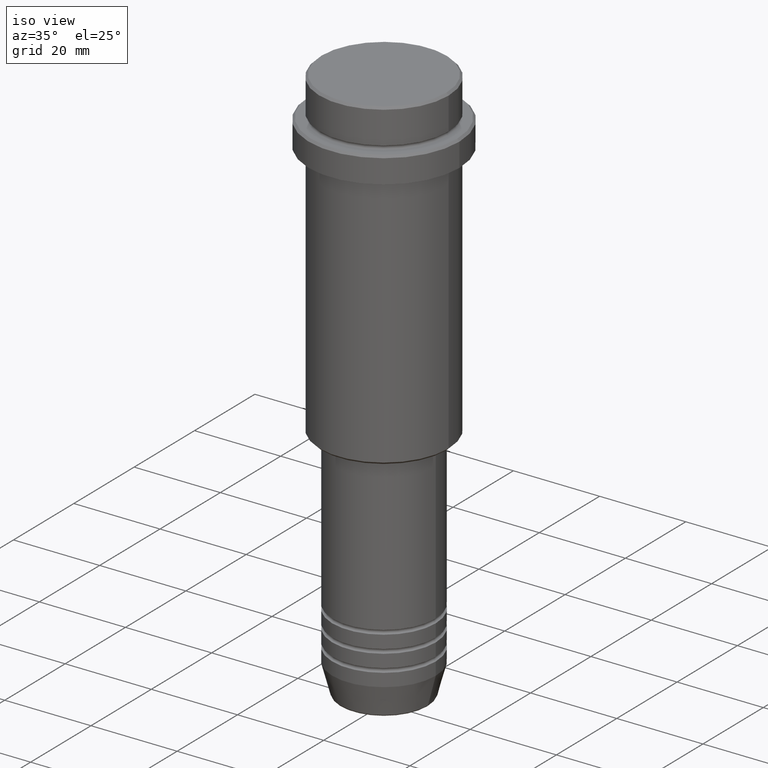
[diagram: clean part render]
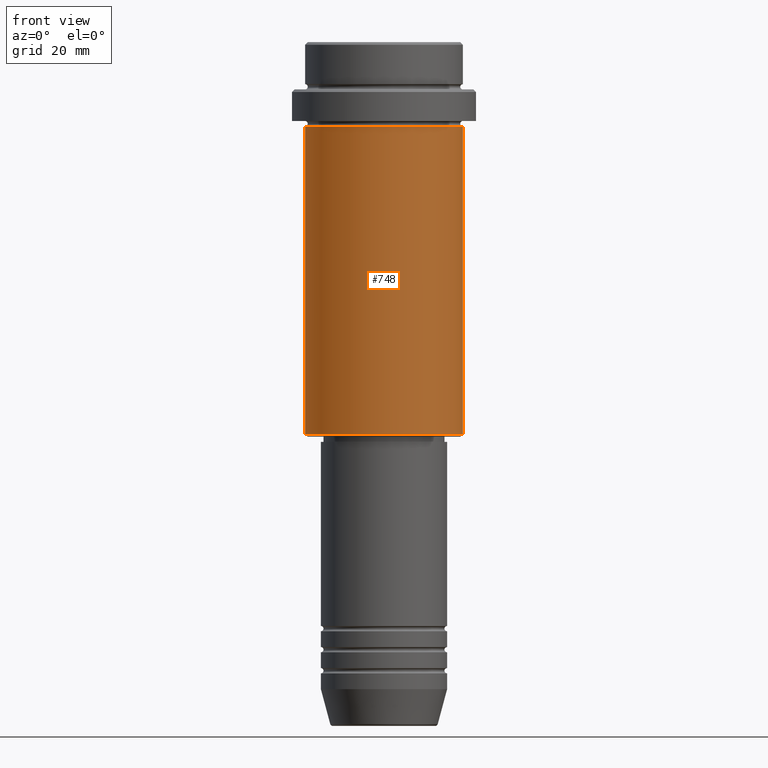
[diagram: tour spotlight — one face highlighted and labeled with its STEP entity id]
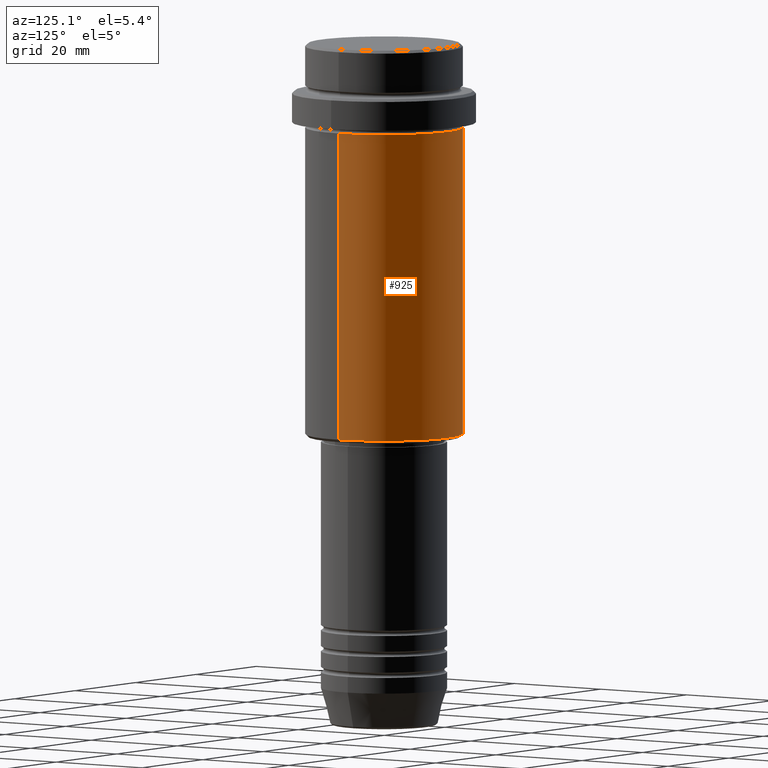
[diagram: tour spotlight — one face highlighted and labeled with its STEP entity id]
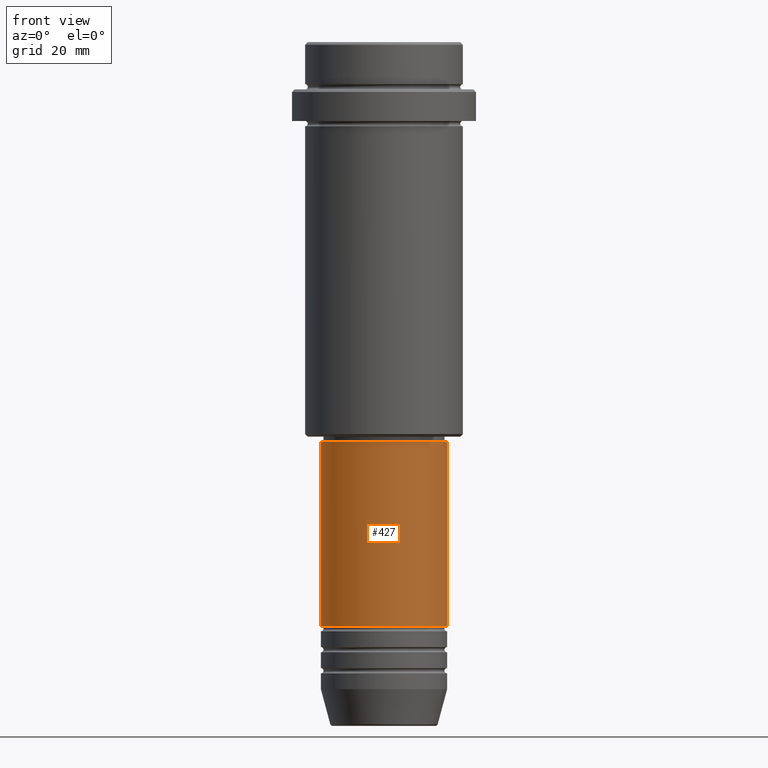
[diagram: tour spotlight — one face highlighted and labeled with its STEP entity id]
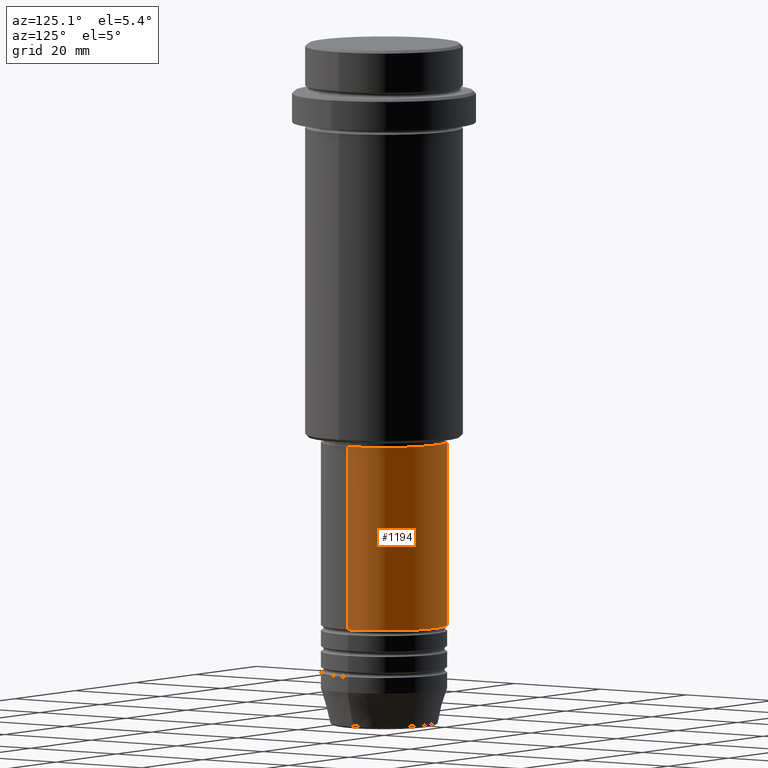
[diagram: tour spotlight — one face highlighted and labeled with its STEP entity id]
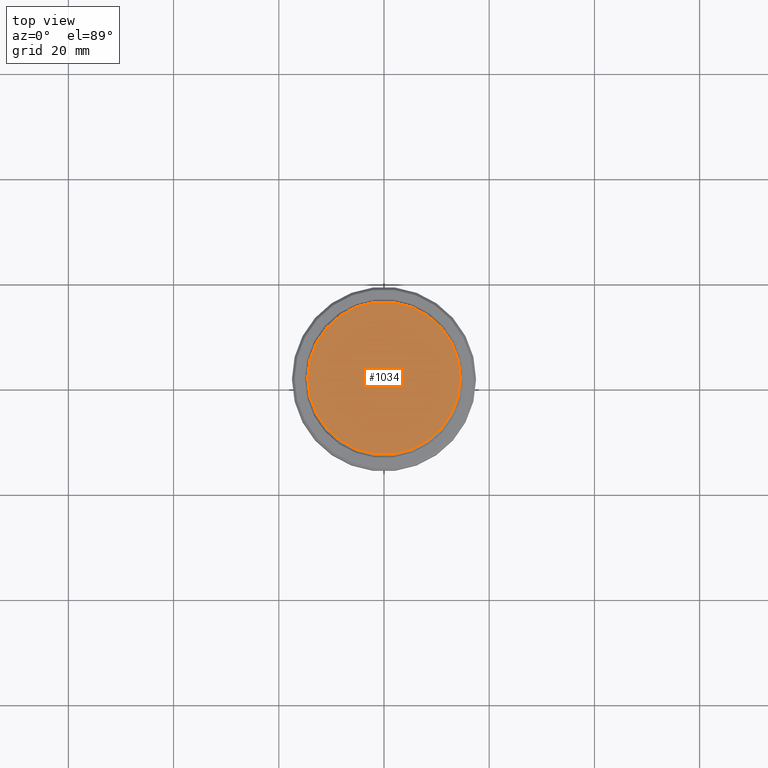
[diagram: tour spotlight — one face highlighted and labeled with its STEP entity id]
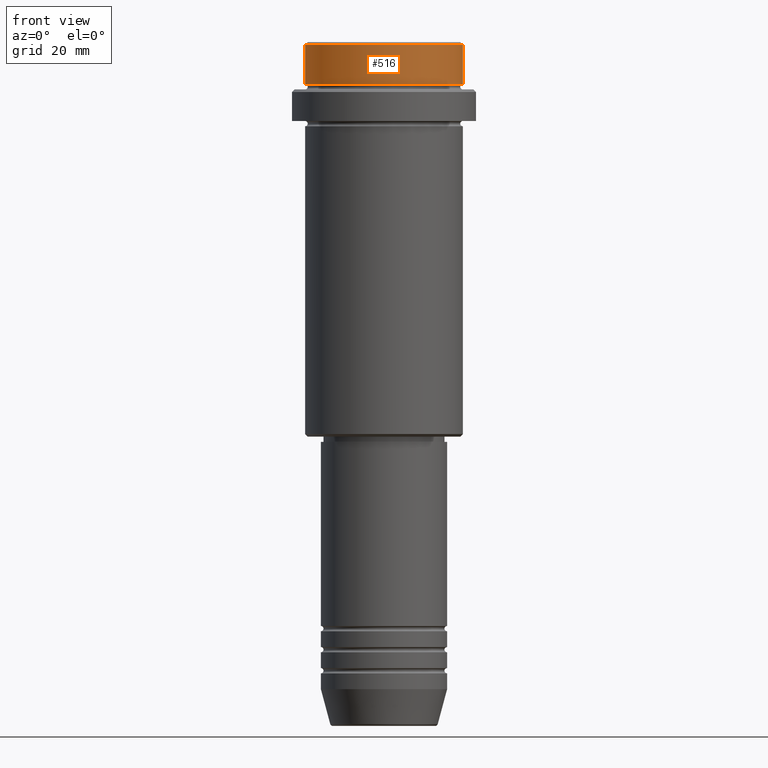
[diagram: tour spotlight — one face highlighted and labeled with its STEP entity id]
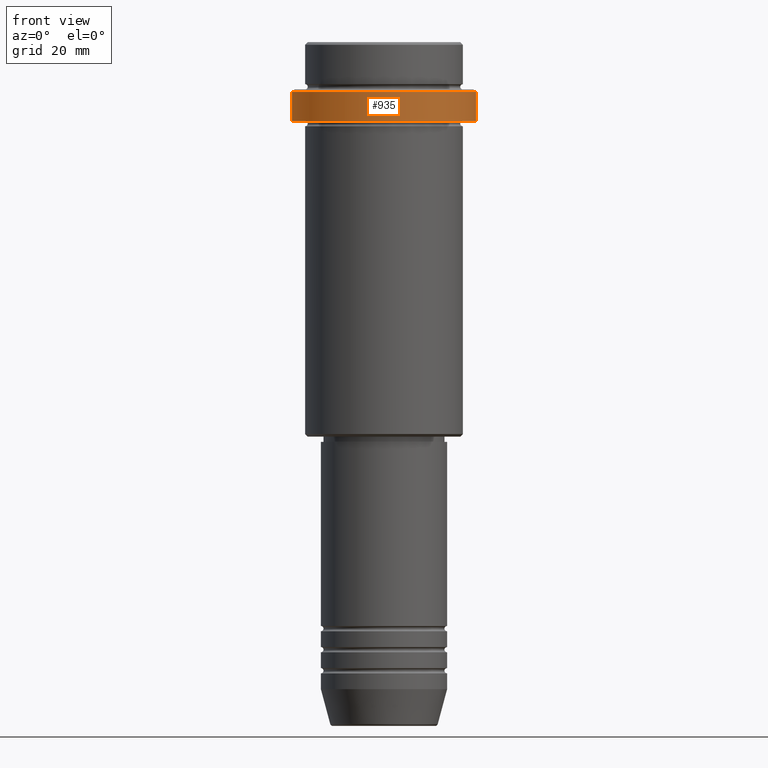
[diagram: tour spotlight — one face highlighted and labeled with its STEP entity id]
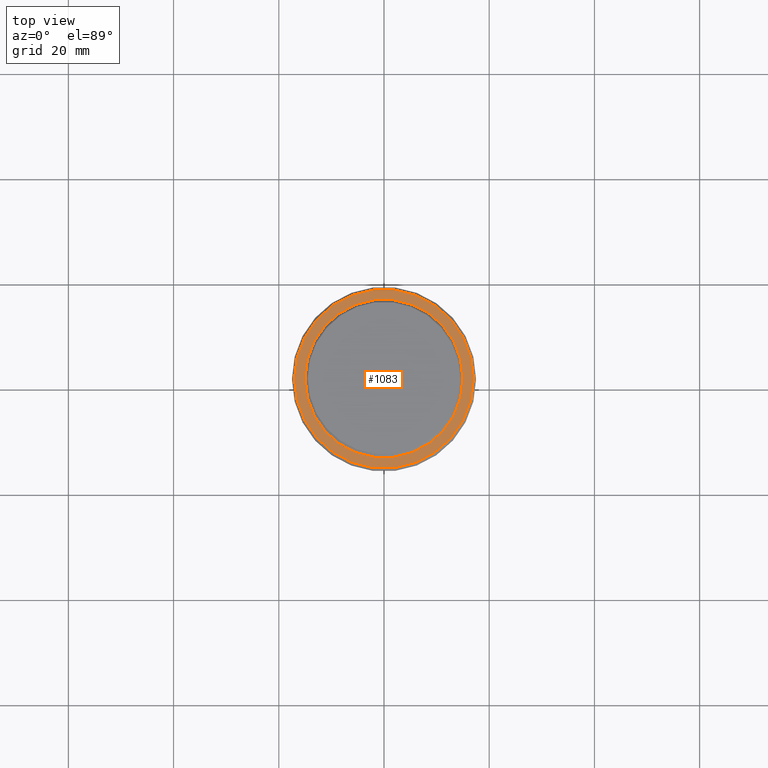
[diagram: tour spotlight — one face highlighted and labeled with its STEP entity id]
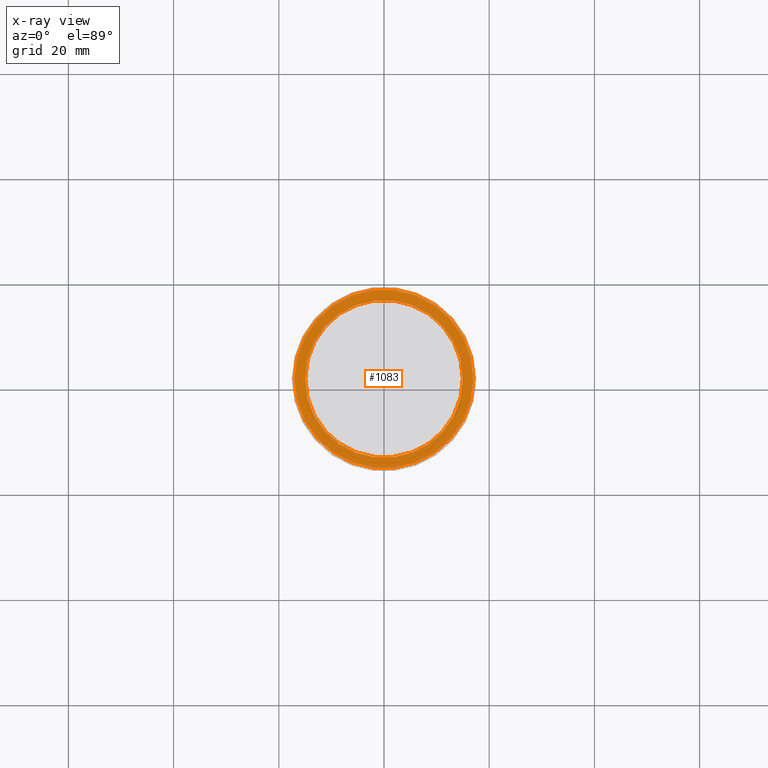
[diagram: x-ray of the same camera — body ghosted, this tour face saturated]
A machine part: a face-by-face anatomy tour. The part has 52 B-rep faces; the first image is the clean iso view, then the 8 largest visible faces are spotlighted one at a time (largest first), each with its STEP entity span.

Face 1 — front view, entity #748. In plain terms, the highlighted cylindrical surface (partial cylindrical patch) has radius 15 mm, axis along (-0, -0, 1).
Definition (entity closure, byte-faithful):
#11 = ORIENTED_EDGE ( 'NONE', *, *, #853, .T. ) ;
#24 = CARTESIAN_POINT ( 'NONE',  ( 0.000000000000000000, 0.000000000000000000, 0.000000000000000000 ) ) ;
#56 = DIRECTION ( 'NONE',  ( -0.000000000000000000, -0.000000000000000000, 1.000000000000000000 ) ) ;
#148 = DIRECTION ( 'NONE',  ( 1.000000000000000000, 0.000000000000000000, 0.000000000000000000 ) ) ;
#202 = DIRECTION ( 'NONE',  ( -0.000000000000000000, -0.000000000000000000, 1.000000000000000000 ) ) ;
#221 = ORIENTED_EDGE ( 'NONE', *, *, #1114, .T. ) ;
#302 = AXIS2_PLACEMENT_3D ( 'NONE', #1076, #202, #976 ) ;
#373 = CARTESIAN_POINT ( 'NONE',  ( 15.00000000000000000, 0.000000000000000000, 0.000000000000000000 ) ) ;
#388 = DIRECTION ( 'NONE',  ( -1.000000000000000000, 0.000000000000000000, 0.000000000000000000 ) ) ;
#445 = VERTEX_POINT ( 'NONE', #1330 ) ;
#513 = CARTESIAN_POINT ( 'NONE',  ( 0.000000000000000000, 0.000000000000000000, -74.50000000000004263 ) ) ;
#602 = CARTESIAN_POINT ( 'NONE',  ( -15.00000000000000000, 1.836970198721029589E-15, -74.50000000000004263 ) ) ;
#617 = CIRCLE ( 'NONE', #302, 15.00000000000000178 ) ;
#636 = CARTESIAN_POINT ( 'NONE',  ( -15.00000000000000000, 1.836970198721029589E-15, 0.000000000000000000 ) ) ;
#697 = LINE ( 'NONE', #373, #1101 ) ;
#698 = CYLINDRICAL_SURFACE ( 'NONE', #846, 15.00000000000000000 ) ;
#701 = EDGE_CURVE ( 'NONE', #445, #884, #617, .T. ) ;
#739 = EDGE_CURVE ( 'NONE', #761, #445, #1176, .T. ) ;
#748 = ADVANCED_FACE ( 'NONE', ( #999 ), #698, .T. ) ;
#761 = VERTEX_POINT ( 'NONE', #602 ) ;
#802 = AXIS2_PLACEMENT_3D ( 'NONE', #513, #56, #388 ) ;
#818 = DIRECTION ( 'NONE',  ( -0.000000000000000000, -0.000000000000000000, 1.000000000000000000 ) ) ;
#846 = AXIS2_PLACEMENT_3D ( 'NONE', #24, #1219, #148 ) ;
#853 = EDGE_CURVE ( 'NONE', #761, #1108, #889, .T. ) ;
#871 = VECTOR ( 'NONE', #1185, 1000.000000000000000 ) ;
#884 = VERTEX_POINT ( 'NONE', #1290 ) ;
#889 = CIRCLE ( 'NONE', #802, 15.00000000000000000 ) ;
#951 = EDGE_LOOP ( 'NONE', ( #1354, #11, #221, #1407 ) ) ;
#976 = DIRECTION ( 'NONE',  ( 1.000000000000000000, 0.000000000000000000, 0.000000000000000000 ) ) ;
#999 = FACE_OUTER_BOUND ( 'NONE', #951, .T. ) ;
#1015 = CARTESIAN_POINT ( 'NONE',  ( 15.00000000000000000, 0.000000000000000000, -74.50000000000004263 ) ) ;
#1076 = CARTESIAN_POINT ( 'NONE',  ( 0.000000000000000000, 0.000000000000000000, -16.00000000000000000 ) ) ;
#1101 = VECTOR ( 'NONE', #818, 1000.000000000000000 ) ;
#1108 = VERTEX_POINT ( 'NONE', #1015 ) ;
#1114 = EDGE_CURVE ( 'NONE', #1108, #884, #697, .T. ) ;
#1176 = LINE ( 'NONE', #636, #871 ) ;
#1185 = DIRECTION ( 'NONE',  ( -0.000000000000000000, -0.000000000000000000, 1.000000000000000000 ) ) ;
#1219 = DIRECTION ( 'NONE',  ( -0.000000000000000000, -0.000000000000000000, 1.000000000000000000 ) ) ;
#1290 = CARTESIAN_POINT ( 'NONE',  ( 15.00000000000000178, 0.000000000000000000, -16.00000000000000000 ) ) ;
#1330 = CARTESIAN_POINT ( 'NONE',  ( -15.00000000000000355, 1.836970198721029983E-15, -16.00000000000000000 ) ) ;
#1354 = ORIENTED_EDGE ( 'NONE', *, *, #739, .F. ) ;
#1407 = ORIENTED_EDGE ( 'NONE', *, *, #701, .F. ) ;

Face 2 — auxiliary view, entity #925. In plain terms, the highlighted cylindrical surface (partial cylindrical patch) has radius 15 mm, axis along (-0, -0, 1).
Definition (entity closure, byte-faithful):
#10 = CYLINDRICAL_SURFACE ( 'NONE', #571, 15.00000000000000000 ) ;
#14 = CARTESIAN_POINT ( 'NONE',  ( 0.000000000000000000, 0.000000000000000000, -74.50000000000004263 ) ) ;
#111 = CIRCLE ( 'NONE', #688, 15.00000000000000000 ) ;
#184 = DIRECTION ( 'NONE',  ( -0.000000000000000000, -0.000000000000000000, 1.000000000000000000 ) ) ;
#199 = DIRECTION ( 'NONE',  ( 1.000000000000000000, 0.000000000000000000, 0.000000000000000000 ) ) ;
#373 = CARTESIAN_POINT ( 'NONE',  ( 15.00000000000000000, 0.000000000000000000, 0.000000000000000000 ) ) ;
#445 = VERTEX_POINT ( 'NONE', #1330 ) ;
#447 = ORIENTED_EDGE ( 'NONE', *, *, #1114, .F. ) ;
#488 = ORIENTED_EDGE ( 'NONE', *, *, #507, .F. ) ;
#507 = EDGE_CURVE ( 'NONE', #884, #445, #981, .T. ) ;
#564 = DIRECTION ( 'NONE',  ( -0.000000000000000000, -0.000000000000000000, 1.000000000000000000 ) ) ;
#571 = AXIS2_PLACEMENT_3D ( 'NONE', #1211, #564, #1350 ) ;
#602 = CARTESIAN_POINT ( 'NONE',  ( -15.00000000000000000, 1.836970198721029589E-15, -74.50000000000004263 ) ) ;
#636 = CARTESIAN_POINT ( 'NONE',  ( -15.00000000000000000, 1.836970198721029589E-15, 0.000000000000000000 ) ) ;
#677 = EDGE_CURVE ( 'NONE', #1108, #761, #111, .T. ) ;
#688 = AXIS2_PLACEMENT_3D ( 'NONE', #14, #782, #1216 ) ;
#697 = LINE ( 'NONE', #373, #1101 ) ;
#739 = EDGE_CURVE ( 'NONE', #761, #445, #1176, .T. ) ;
#761 = VERTEX_POINT ( 'NONE', #602 ) ;
#782 = DIRECTION ( 'NONE',  ( -0.000000000000000000, -0.000000000000000000, 1.000000000000000000 ) ) ;
#818 = DIRECTION ( 'NONE',  ( -0.000000000000000000, -0.000000000000000000, 1.000000000000000000 ) ) ;
#871 = VECTOR ( 'NONE', #1185, 1000.000000000000000 ) ;
#884 = VERTEX_POINT ( 'NONE', #1290 ) ;
#925 = ADVANCED_FACE ( 'NONE', ( #1309 ), #10, .T. ) ;
#981 = CIRCLE ( 'NONE', #1158, 15.00000000000000178 ) ;
#1000 = ORIENTED_EDGE ( 'NONE', *, *, #677, .T. ) ;
#1007 = ORIENTED_EDGE ( 'NONE', *, *, #739, .T. ) ;
#1015 = CARTESIAN_POINT ( 'NONE',  ( 15.00000000000000000, 0.000000000000000000, -74.50000000000004263 ) ) ;
#1067 = CARTESIAN_POINT ( 'NONE',  ( 0.000000000000000000, 0.000000000000000000, -16.00000000000000000 ) ) ;
#1101 = VECTOR ( 'NONE', #818, 1000.000000000000000 ) ;
#1108 = VERTEX_POINT ( 'NONE', #1015 ) ;
#1114 = EDGE_CURVE ( 'NONE', #1108, #884, #697, .T. ) ;
#1158 = AXIS2_PLACEMENT_3D ( 'NONE', #1067, #184, #199 ) ;
#1176 = LINE ( 'NONE', #636, #871 ) ;
#1185 = DIRECTION ( 'NONE',  ( -0.000000000000000000, -0.000000000000000000, 1.000000000000000000 ) ) ;
#1211 = CARTESIAN_POINT ( 'NONE',  ( 0.000000000000000000, 0.000000000000000000, 0.000000000000000000 ) ) ;
#1216 = DIRECTION ( 'NONE',  ( -1.000000000000000000, 0.000000000000000000, 0.000000000000000000 ) ) ;
#1290 = CARTESIAN_POINT ( 'NONE',  ( 15.00000000000000178, 0.000000000000000000, -16.00000000000000000 ) ) ;
#1309 = FACE_OUTER_BOUND ( 'NONE', #1357, .T. ) ;
#1330 = CARTESIAN_POINT ( 'NONE',  ( -15.00000000000000355, 1.836970198721029983E-15, -16.00000000000000000 ) ) ;
#1350 = DIRECTION ( 'NONE',  ( 1.000000000000000000, 0.000000000000000000, 0.000000000000000000 ) ) ;
#1357 = EDGE_LOOP ( 'NONE', ( #1000, #1007, #488, #447 ) ) ;

Face 3 — front view, entity #427. In plain terms, the highlighted cylindrical surface (partial cylindrical patch) has radius 12 mm, axis along (-0, -0, 1).
Definition (entity closure, byte-faithful):
#2 = ORIENTED_EDGE ( 'NONE', *, *, #1087, .F. ) ;
#13 = DIRECTION ( 'NONE',  ( -0.000000000000000000, -0.000000000000000000, 1.000000000000000000 ) ) ;
#25 = ORIENTED_EDGE ( 'NONE', *, *, #1097, .T. ) ;
#34 = AXIS2_PLACEMENT_3D ( 'NONE', #1311, #773, #788 ) ;
#43 = DIRECTION ( 'NONE',  ( 1.000000000000000000, 0.000000000000000000, 0.000000000000000000 ) ) ;
#59 = DIRECTION ( 'NONE',  ( 1.000000000000000000, 0.000000000000000000, 0.000000000000000000 ) ) ;
#136 = ORIENTED_EDGE ( 'NONE', *, *, #1301, .F. ) ;
#139 = FACE_OUTER_BOUND ( 'NONE', #881, .T. ) ;
#170 = AXIS2_PLACEMENT_3D ( 'NONE', #746, #1168, #59 ) ;
#190 = CIRCLE ( 'NONE', #34, 11.99999999999999822 ) ;
#380 = VERTEX_POINT ( 'NONE', #1383 ) ;
#427 = ADVANCED_FACE ( 'NONE', ( #139 ), #665, .T. ) ;
#460 = ORIENTED_EDGE ( 'NONE', *, *, #1149, .T. ) ;
#548 = CARTESIAN_POINT ( 'NONE',  ( 12.00000000000000000, 0.000000000000000000, -110.9999999999998863 ) ) ;
#640 = LINE ( 'NONE', #866, #1081 ) ;
#665 = CYLINDRICAL_SURFACE ( 'NONE', #1365, 12.00000000000000000 ) ;
#667 = CARTESIAN_POINT ( 'NONE',  ( -12.00000000000000000, 1.469576158976823947E-15, 0.000000000000000000 ) ) ;
#716 = CARTESIAN_POINT ( 'NONE',  ( -11.99999999999999822, 1.469576158976823750E-15, -76.00000000000001421 ) ) ;
#746 = CARTESIAN_POINT ( 'NONE',  ( 0.000000000000000000, 0.000000000000000000, -110.9999999999998863 ) ) ;
#764 = CIRCLE ( 'NONE', #170, 12.00000000000000000 ) ;
#773 = DIRECTION ( 'NONE',  ( -0.000000000000000000, -0.000000000000000000, 1.000000000000000000 ) ) ;
#788 = DIRECTION ( 'NONE',  ( 1.000000000000000000, 0.000000000000000000, 0.000000000000000000 ) ) ;
#866 = CARTESIAN_POINT ( 'NONE',  ( 12.00000000000000000, 0.000000000000000000, 0.000000000000000000 ) ) ;
#876 = VECTOR ( 'NONE', #1104, 1000.000000000000000 ) ;
#881 = EDGE_LOOP ( 'NONE', ( #2, #460, #25, #136 ) ) ;
#908 = VERTEX_POINT ( 'NONE', #548 ) ;
#1045 = VERTEX_POINT ( 'NONE', #1273 ) ;
#1081 = VECTOR ( 'NONE', #1300, 1000.000000000000000 ) ;
#1087 = EDGE_CURVE ( 'NONE', #1045, #1349, #1128, .T. ) ;
#1097 = EDGE_CURVE ( 'NONE', #908, #380, #640, .T. ) ;
#1104 = DIRECTION ( 'NONE',  ( -0.000000000000000000, -0.000000000000000000, 1.000000000000000000 ) ) ;
#1128 = LINE ( 'NONE', #667, #876 ) ;
#1149 = EDGE_CURVE ( 'NONE', #1045, #908, #764, .T. ) ;
#1168 = DIRECTION ( 'NONE',  ( -0.000000000000000000, -0.000000000000000000, 1.000000000000000000 ) ) ;
#1240 = CARTESIAN_POINT ( 'NONE',  ( 0.000000000000000000, 0.000000000000000000, 0.000000000000000000 ) ) ;
#1273 = CARTESIAN_POINT ( 'NONE',  ( -12.00000000000000000, 1.469576158976823947E-15, -110.9999999999998863 ) ) ;
#1300 = DIRECTION ( 'NONE',  ( -0.000000000000000000, -0.000000000000000000, 1.000000000000000000 ) ) ;
#1301 = EDGE_CURVE ( 'NONE', #1349, #380, #190, .T. ) ;
#1311 = CARTESIAN_POINT ( 'NONE',  ( 0.000000000000000000, 0.000000000000000000, -76.00000000000001421 ) ) ;
#1349 = VERTEX_POINT ( 'NONE', #716 ) ;
#1365 = AXIS2_PLACEMENT_3D ( 'NONE', #1240, #13, #43 ) ;
#1383 = CARTESIAN_POINT ( 'NONE',  ( 11.99999999999999822, 0.000000000000000000, -76.00000000000001421 ) ) ;

Face 4 — auxiliary view, entity #1194. In plain terms, the highlighted cylindrical surface (partial cylindrical patch) has radius 12 mm, axis along (-0, -0, 1).
Definition (entity closure, byte-faithful):
#23 = EDGE_CURVE ( 'NONE', #908, #1045, #567, .T. ) ;
#245 = DIRECTION ( 'NONE',  ( -0.000000000000000000, -0.000000000000000000, 1.000000000000000000 ) ) ;
#290 = CIRCLE ( 'NONE', #719, 11.99999999999999822 ) ;
#380 = VERTEX_POINT ( 'NONE', #1383 ) ;
#423 = AXIS2_PLACEMENT_3D ( 'NONE', #990, #245, #1009 ) ;
#472 = DIRECTION ( 'NONE',  ( -0.000000000000000000, -0.000000000000000000, 1.000000000000000000 ) ) ;
#548 = CARTESIAN_POINT ( 'NONE',  ( 12.00000000000000000, 0.000000000000000000, -110.9999999999998863 ) ) ;
#549 = ORIENTED_EDGE ( 'NONE', *, *, #1087, .T. ) ;
#567 = CIRCLE ( 'NONE', #1341, 12.00000000000000000 ) ;
#640 = LINE ( 'NONE', #866, #1081 ) ;
#667 = CARTESIAN_POINT ( 'NONE',  ( -12.00000000000000000, 1.469576158976823947E-15, 0.000000000000000000 ) ) ;
#707 = EDGE_LOOP ( 'NONE', ( #747, #549, #1372, #989 ) ) ;
#716 = CARTESIAN_POINT ( 'NONE',  ( -11.99999999999999822, 1.469576158976823750E-15, -76.00000000000001421 ) ) ;
#719 = AXIS2_PLACEMENT_3D ( 'NONE', #980, #472, #1254 ) ;
#747 = ORIENTED_EDGE ( 'NONE', *, *, #23, .T. ) ;
#766 = CYLINDRICAL_SURFACE ( 'NONE', #423, 12.00000000000000000 ) ;
#770 = CARTESIAN_POINT ( 'NONE',  ( 0.000000000000000000, 0.000000000000000000, -110.9999999999998863 ) ) ;
#866 = CARTESIAN_POINT ( 'NONE',  ( 12.00000000000000000, 0.000000000000000000, 0.000000000000000000 ) ) ;
#876 = VECTOR ( 'NONE', #1104, 1000.000000000000000 ) ;
#908 = VERTEX_POINT ( 'NONE', #548 ) ;
#980 = CARTESIAN_POINT ( 'NONE',  ( 0.000000000000000000, 0.000000000000000000, -76.00000000000001421 ) ) ;
#989 = ORIENTED_EDGE ( 'NONE', *, *, #1097, .F. ) ;
#990 = CARTESIAN_POINT ( 'NONE',  ( 0.000000000000000000, 0.000000000000000000, 0.000000000000000000 ) ) ;
#1009 = DIRECTION ( 'NONE',  ( 1.000000000000000000, 0.000000000000000000, 0.000000000000000000 ) ) ;
#1045 = VERTEX_POINT ( 'NONE', #1273 ) ;
#1081 = VECTOR ( 'NONE', #1300, 1000.000000000000000 ) ;
#1087 = EDGE_CURVE ( 'NONE', #1045, #1349, #1128, .T. ) ;
#1097 = EDGE_CURVE ( 'NONE', #908, #380, #640, .T. ) ;
#1104 = DIRECTION ( 'NONE',  ( -0.000000000000000000, -0.000000000000000000, 1.000000000000000000 ) ) ;
#1123 = DIRECTION ( 'NONE',  ( 1.000000000000000000, 0.000000000000000000, 0.000000000000000000 ) ) ;
#1128 = LINE ( 'NONE', #667, #876 ) ;
#1173 = EDGE_CURVE ( 'NONE', #380, #1349, #290, .T. ) ;
#1194 = ADVANCED_FACE ( 'NONE', ( #1328 ), #766, .T. ) ;
#1202 = DIRECTION ( 'NONE',  ( -0.000000000000000000, -0.000000000000000000, 1.000000000000000000 ) ) ;
#1254 = DIRECTION ( 'NONE',  ( 1.000000000000000000, 0.000000000000000000, 0.000000000000000000 ) ) ;
#1273 = CARTESIAN_POINT ( 'NONE',  ( -12.00000000000000000, 1.469576158976823947E-15, -110.9999999999998863 ) ) ;
#1300 = DIRECTION ( 'NONE',  ( -0.000000000000000000, -0.000000000000000000, 1.000000000000000000 ) ) ;
#1328 = FACE_OUTER_BOUND ( 'NONE', #707, .T. ) ;
#1341 = AXIS2_PLACEMENT_3D ( 'NONE', #770, #1202, #1123 ) ;
#1349 = VERTEX_POINT ( 'NONE', #716 ) ;
#1372 = ORIENTED_EDGE ( 'NONE', *, *, #1173, .F. ) ;
#1383 = CARTESIAN_POINT ( 'NONE',  ( 11.99999999999999822, 0.000000000000000000, -76.00000000000001421 ) ) ;

Face 5 — top view, entity #1034. In plain terms, the highlighted planar face has unit normal (0, -0, 1).
Definition (entity closure, byte-faithful):
#91 = DIRECTION ( 'NONE',  ( -0.000000000000000000, -0.000000000000000000, 1.000000000000000000 ) ) ;
#118 = EDGE_LOOP ( 'NONE', ( #442, #903 ) ) ;
#203 = VERTEX_POINT ( 'NONE', #492 ) ;
#289 = DIRECTION ( 'NONE',  ( 1.000000000000000000, 0.000000000000000000, 0.000000000000000000 ) ) ;
#308 = PLANE ( 'NONE',  #1138 ) ;
#391 = CIRCLE ( 'NONE', #1091, 14.49999999999996980 ) ;
#397 = VERTEX_POINT ( 'NONE', #1165 ) ;
#442 = ORIENTED_EDGE ( 'NONE', *, *, #1380, .T. ) ;
#492 = CARTESIAN_POINT ( 'NONE',  ( 14.49999999999996980, 1.806354028742344224E-15, 0.000000000000000000 ) ) ;
#505 = CARTESIAN_POINT ( 'NONE',  ( 0.000000000000000000, 0.000000000000000000, 0.000000000000000000 ) ) ;
#527 = DIRECTION ( 'NONE',  ( 1.000000000000000000, 0.000000000000000000, 0.000000000000000000 ) ) ;
#580 = AXIS2_PLACEMENT_3D ( 'NONE', #591, #721, #289 ) ;
#591 = CARTESIAN_POINT ( 'NONE',  ( 0.000000000000000000, 0.000000000000000000, 0.000000000000000000 ) ) ;
#721 = DIRECTION ( 'NONE',  ( -0.000000000000000000, -0.000000000000000000, 1.000000000000000000 ) ) ;
#726 = EDGE_CURVE ( 'NONE', #203, #397, #391, .T. ) ;
#752 = CARTESIAN_POINT ( 'NONE',  ( 0.000000000000000000, 0.000000000000000000, 0.000000000000000000 ) ) ;
#855 = DIRECTION ( 'NONE',  ( 0.000000000000000000, -0.000000000000000000, 1.000000000000000000 ) ) ;
#903 = ORIENTED_EDGE ( 'NONE', *, *, #726, .T. ) ;
#1034 = ADVANCED_FACE ( 'NONE', ( #1163 ), #308, .T. ) ;
#1091 = AXIS2_PLACEMENT_3D ( 'NONE', #752, #91, #527 ) ;
#1138 = AXIS2_PLACEMENT_3D ( 'NONE', #505, #855, #1175 ) ;
#1163 = FACE_OUTER_BOUND ( 'NONE', #118, .T. ) ;
#1165 = CARTESIAN_POINT ( 'NONE',  ( -14.49999999999996980, 0.000000000000000000, 0.000000000000000000 ) ) ;
#1175 = DIRECTION ( 'NONE',  ( 1.000000000000000000, 0.000000000000000000, 0.000000000000000000 ) ) ;
#1190 = CIRCLE ( 'NONE', #580, 14.49999999999996980 ) ;
#1380 = EDGE_CURVE ( 'NONE', #397, #203, #1190, .T. ) ;

Face 6 — front view, entity #516. In plain terms, the highlighted cylindrical surface (partial cylindrical patch) has radius 15 mm, axis along (-0, -0, 1).
Definition (entity closure, byte-faithful):
#15 = VERTEX_POINT ( 'NONE', #354 ) ;
#68 = DIRECTION ( 'NONE',  ( -0.000000000000000000, -0.000000000000000000, 1.000000000000000000 ) ) ;
#120 = EDGE_CURVE ( 'NONE', #582, #862, #1262, .T. ) ;
#146 = EDGE_CURVE ( 'NONE', #582, #15, #1027, .T. ) ;
#232 = CARTESIAN_POINT ( 'NONE',  ( -15.00000000000000000, 1.836970198721029589E-15, -0.5000000000000386358 ) ) ;
#278 = CARTESIAN_POINT ( 'NONE',  ( 15.00000000000000000, 0.000000000000000000, 0.000000000000000000 ) ) ;
#354 = CARTESIAN_POINT ( 'NONE',  ( 15.00000000000000000, 0.000000000000000000, -7.999999999999998224 ) ) ;
#484 = CIRCLE ( 'NONE', #1129, 15.00000000000000000 ) ;
#511 = ORIENTED_EDGE ( 'NONE', *, *, #120, .F. ) ;
#516 = ADVANCED_FACE ( 'NONE', ( #1075 ), #860, .T. ) ;
#518 = DIRECTION ( 'NONE',  ( -0.000000000000000000, -0.000000000000000000, 1.000000000000000000 ) ) ;
#561 = CARTESIAN_POINT ( 'NONE',  ( 15.00000000000000000, 0.000000000000000000, -0.5000000000000386358 ) ) ;
#582 = VERTEX_POINT ( 'NONE', #894 ) ;
#592 = ORIENTED_EDGE ( 'NONE', *, *, #146, .T. ) ;
#597 = VECTOR ( 'NONE', #601, 1000.000000000000000 ) ;
#601 = DIRECTION ( 'NONE',  ( -0.000000000000000000, -0.000000000000000000, 1.000000000000000000 ) ) ;
#755 = CARTESIAN_POINT ( 'NONE',  ( 0.000000000000000000, 0.000000000000000000, 0.000000000000000000 ) ) ;
#781 = CARTESIAN_POINT ( 'NONE',  ( 0.000000000000000000, 0.000000000000000000, -0.5000000000000386358 ) ) ;
#811 = LINE ( 'NONE', #278, #597 ) ;
#820 = CARTESIAN_POINT ( 'NONE',  ( 0.000000000000000000, 0.000000000000000000, -7.999999999999998224 ) ) ;
#860 = CYLINDRICAL_SURFACE ( 'NONE', #1278, 15.00000000000000000 ) ;
#862 = VERTEX_POINT ( 'NONE', #232 ) ;
#868 = DIRECTION ( 'NONE',  ( -0.000000000000000000, -0.000000000000000000, 1.000000000000000000 ) ) ;
#874 = DIRECTION ( 'NONE',  ( 1.000000000000000000, 0.000000000000000000, 0.000000000000000000 ) ) ;
#894 = CARTESIAN_POINT ( 'NONE',  ( -15.00000000000000000, 1.836970198721029589E-15, -7.999999999999998224 ) ) ;
#958 = EDGE_LOOP ( 'NONE', ( #511, #592, #1028, #994 ) ) ;
#994 = ORIENTED_EDGE ( 'NONE', *, *, #1187, .T. ) ;
#1027 = CIRCLE ( 'NONE', #1408, 15.00000000000000000 ) ;
#1028 = ORIENTED_EDGE ( 'NONE', *, *, #1049, .T. ) ;
#1049 = EDGE_CURVE ( 'NONE', #15, #1177, #811, .T. ) ;
#1070 = VECTOR ( 'NONE', #68, 1000.000000000000000 ) ;
#1075 = FACE_OUTER_BOUND ( 'NONE', #958, .T. ) ;
#1129 = AXIS2_PLACEMENT_3D ( 'NONE', #781, #1197, #1221 ) ;
#1177 = VERTEX_POINT ( 'NONE', #561 ) ;
#1187 = EDGE_CURVE ( 'NONE', #1177, #862, #484, .T. ) ;
#1197 = DIRECTION ( 'NONE',  ( 0.000000000000000000, 0.000000000000000000, -1.000000000000000000 ) ) ;
#1221 = DIRECTION ( 'NONE',  ( 1.000000000000000000, 0.000000000000000000, 0.000000000000000000 ) ) ;
#1262 = LINE ( 'NONE', #1270, #1070 ) ;
#1270 = CARTESIAN_POINT ( 'NONE',  ( -15.00000000000000000, 1.836970198721029589E-15, 0.000000000000000000 ) ) ;
#1278 = AXIS2_PLACEMENT_3D ( 'NONE', #755, #868, #874 ) ;
#1356 = DIRECTION ( 'NONE',  ( 1.000000000000000000, 0.000000000000000000, 0.000000000000000000 ) ) ;
#1408 = AXIS2_PLACEMENT_3D ( 'NONE', #820, #518, #1356 ) ;

Face 7 — front view, entity #935. In plain terms, the highlighted cylindrical surface (partial cylindrical patch) has radius 17.5 mm, axis along (-0, -0, 1).
Definition (entity closure, byte-faithful):
#99 = DIRECTION ( 'NONE',  ( -0.000000000000000000, -0.000000000000000000, 1.000000000000000000 ) ) ;
#115 = ORIENTED_EDGE ( 'NONE', *, *, #959, .T. ) ;
#119 = CARTESIAN_POINT ( 'NONE',  ( -17.50000000000000000, 2.143131898507868248E-15, -9.499999999999985789 ) ) ;
#132 = CARTESIAN_POINT ( 'NONE',  ( 0.000000000000000000, 0.000000000000000000, -15.00000000000000000 ) ) ;
#141 = DIRECTION ( 'NONE',  ( 1.000000000000000000, 0.000000000000000000, 0.000000000000000000 ) ) ;
#144 = VERTEX_POINT ( 'NONE', #280 ) ;
#280 = CARTESIAN_POINT ( 'NONE',  ( 17.50000000000000000, 0.000000000000000000, -9.499999999999985789 ) ) ;
#301 = VERTEX_POINT ( 'NONE', #422 ) ;
#316 = EDGE_LOOP ( 'NONE', ( #777, #426, #115, #895 ) ) ;
#327 = EDGE_CURVE ( 'NONE', #144, #1057, #390, .T. ) ;
#345 = VECTOR ( 'NONE', #1095, 1000.000000000000000 ) ;
#346 = CARTESIAN_POINT ( 'NONE',  ( 0.000000000000000000, 0.000000000000000000, 0.000000000000000000 ) ) ;
#390 = CIRCLE ( 'NONE', #432, 17.50000000000000000 ) ;
#404 = VERTEX_POINT ( 'NONE', #417 ) ;
#417 = CARTESIAN_POINT ( 'NONE',  ( 17.50000000000000000, 0.000000000000000000, -15.00000000000000000 ) ) ;
#422 = CARTESIAN_POINT ( 'NONE',  ( -17.50000000000000000, 2.143131898507868248E-15, -15.00000000000000000 ) ) ;
#426 = ORIENTED_EDGE ( 'NONE', *, *, #556, .T. ) ;
#432 = AXIS2_PLACEMENT_3D ( 'NONE', #1406, #678, #141 ) ;
#471 = DIRECTION ( 'NONE',  ( 1.000000000000000000, 0.000000000000000000, 0.000000000000000000 ) ) ;
#556 = EDGE_CURVE ( 'NONE', #301, #404, #1258, .T. ) ;
#678 = DIRECTION ( 'NONE',  ( 0.000000000000000000, 0.000000000000000000, -1.000000000000000000 ) ) ;
#742 = FACE_OUTER_BOUND ( 'NONE', #316, .T. ) ;
#777 = ORIENTED_EDGE ( 'NONE', *, *, #1058, .F. ) ;
#883 = CARTESIAN_POINT ( 'NONE',  ( 17.50000000000000000, 0.000000000000000000, 0.000000000000000000 ) ) ;
#895 = ORIENTED_EDGE ( 'NONE', *, *, #327, .T. ) ;
#935 = ADVANCED_FACE ( 'NONE', ( #742 ), #996, .T. ) ;
#959 = EDGE_CURVE ( 'NONE', #404, #144, #1010, .T. ) ;
#979 = DIRECTION ( 'NONE',  ( 1.000000000000000000, 0.000000000000000000, 0.000000000000000000 ) ) ;
#996 = CYLINDRICAL_SURFACE ( 'NONE', #1092, 17.50000000000000000 ) ;
#1010 = LINE ( 'NONE', #883, #345 ) ;
#1057 = VERTEX_POINT ( 'NONE', #119 ) ;
#1058 = EDGE_CURVE ( 'NONE', #301, #1057, #1412, .T. ) ;
#1092 = AXIS2_PLACEMENT_3D ( 'NONE', #346, #1209, #979 ) ;
#1095 = DIRECTION ( 'NONE',  ( -0.000000000000000000, -0.000000000000000000, 1.000000000000000000 ) ) ;
#1113 = DIRECTION ( 'NONE',  ( -0.000000000000000000, -0.000000000000000000, 1.000000000000000000 ) ) ;
#1209 = DIRECTION ( 'NONE',  ( -0.000000000000000000, -0.000000000000000000, 1.000000000000000000 ) ) ;
#1258 = CIRCLE ( 'NONE', #1366, 17.50000000000000000 ) ;
#1285 = CARTESIAN_POINT ( 'NONE',  ( -17.50000000000000000, 2.143131898507868248E-15, 0.000000000000000000 ) ) ;
#1318 = VECTOR ( 'NONE', #99, 1000.000000000000000 ) ;
#1366 = AXIS2_PLACEMENT_3D ( 'NONE', #132, #1113, #471 ) ;
#1406 = CARTESIAN_POINT ( 'NONE',  ( 0.000000000000000000, 0.000000000000000000, -9.499999999999985789 ) ) ;
#1412 = LINE ( 'NONE', #1285, #1318 ) ;

Face 8 — top view, entity #1083. An x-ray twin of the same camera follows (body ghosted, this face saturated) — the face is partly hidden behind the body. In plain terms, the highlighted planar face has unit normal (0, -0, 1).
Definition (entity closure, byte-faithful):
#3 = CARTESIAN_POINT ( 'NONE',  ( 14.99999999999999289, 0.000000000000000000, -9.000000000000000000 ) ) ;
#41 = DIRECTION ( 'NONE',  ( -0.000000000000000000, -0.000000000000000000, 1.000000000000000000 ) ) ;
#58 = CARTESIAN_POINT ( 'NONE',  ( -14.99999999999999289, 1.836970198721028800E-15, -9.000000000000000000 ) ) ;
#63 = AXIS2_PLACEMENT_3D ( 'NONE', #1017, #41, #241 ) ;
#107 = VERTEX_POINT ( 'NONE', #58 ) ;
#110 = FACE_BOUND ( 'NONE', #121, .T. ) ;
#121 = EDGE_LOOP ( 'NONE', ( #1248, #129 ) ) ;
#129 = ORIENTED_EDGE ( 'NONE', *, *, #394, .T. ) ;
#155 = AXIS2_PLACEMENT_3D ( 'NONE', #741, #1275, #509 ) ;
#196 = DIRECTION ( 'NONE',  ( 1.000000000000000000, 0.000000000000000000, 0.000000000000000000 ) ) ;
#230 = DIRECTION ( 'NONE',  ( 1.000000000000000000, 0.000000000000000000, 0.000000000000000000 ) ) ;
#241 = DIRECTION ( 'NONE',  ( 1.000000000000000000, 0.000000000000000000, 0.000000000000000000 ) ) ;
#309 = VERTEX_POINT ( 'NONE', #317 ) ;
#310 = CIRCLE ( 'NONE', #63, 17.00000000000000000 ) ;
#317 = CARTESIAN_POINT ( 'NONE',  ( 17.00000000000000000, 2.112515728529184067E-15, -9.000000000000000000 ) ) ;
#370 = ORIENTED_EDGE ( 'NONE', *, *, #1218, .T. ) ;
#378 = DIRECTION ( 'NONE',  ( 1.000000000000000000, 0.000000000000000000, 0.000000000000000000 ) ) ;
#394 = EDGE_CURVE ( 'NONE', #107, #1203, #709, .T. ) ;
#479 = CIRCLE ( 'NONE', #528, 14.99999999999999289 ) ;
#509 = DIRECTION ( 'NONE',  ( 1.000000000000000000, 0.000000000000000000, 0.000000000000000000 ) ) ;
#528 = AXIS2_PLACEMENT_3D ( 'NONE', #998, #880, #230 ) ;
#546 = CARTESIAN_POINT ( 'NONE',  ( 0.000000000000000000, 14.49999999999999467, -9.000000000000000000 ) ) ;
#651 = FACE_OUTER_BOUND ( 'NONE', #1310, .T. ) ;
#656 = VERTEX_POINT ( 'NONE', #1031 ) ;
#660 = CIRCLE ( 'NONE', #848, 17.00000000000000000 ) ;
#692 = CARTESIAN_POINT ( 'NONE',  ( 0.000000000000000000, 0.000000000000000000, -9.000000000000000000 ) ) ;
#709 = CIRCLE ( 'NONE', #155, 14.99999999999999289 ) ;
#741 = CARTESIAN_POINT ( 'NONE',  ( 0.000000000000000000, 0.000000000000000000, -9.000000000000000000 ) ) ;
#848 = AXIS2_PLACEMENT_3D ( 'NONE', #692, #918, #378 ) ;
#877 = DIRECTION ( 'NONE',  ( 0.000000000000000000, -0.000000000000000000, 1.000000000000000000 ) ) ;
#880 = DIRECTION ( 'NONE',  ( 0.000000000000000000, 0.000000000000000000, -1.000000000000000000 ) ) ;
#892 = AXIS2_PLACEMENT_3D ( 'NONE', #546, #877, #196 ) ;
#915 = EDGE_CURVE ( 'NONE', #1203, #107, #479, .T. ) ;
#918 = DIRECTION ( 'NONE',  ( -0.000000000000000000, -0.000000000000000000, 1.000000000000000000 ) ) ;
#995 = EDGE_CURVE ( 'NONE', #309, #656, #660, .T. ) ;
#998 = CARTESIAN_POINT ( 'NONE',  ( 0.000000000000000000, 0.000000000000000000, -9.000000000000000000 ) ) ;
#1017 = CARTESIAN_POINT ( 'NONE',  ( 0.000000000000000000, 0.000000000000000000, -9.000000000000000000 ) ) ;
#1031 = CARTESIAN_POINT ( 'NONE',  ( -17.00000000000000000, 0.000000000000000000, -9.000000000000000000 ) ) ;
#1037 = ORIENTED_EDGE ( 'NONE', *, *, #995, .T. ) ;
#1083 = ADVANCED_FACE ( 'NONE', ( #651, #110 ), #1171, .T. ) ;
#1171 = PLANE ( 'NONE',  #892 ) ;
#1203 = VERTEX_POINT ( 'NONE', #3 ) ;
#1218 = EDGE_CURVE ( 'NONE', #656, #309, #310, .T. ) ;
#1248 = ORIENTED_EDGE ( 'NONE', *, *, #915, .T. ) ;
#1275 = DIRECTION ( 'NONE',  ( 0.000000000000000000, 0.000000000000000000, -1.000000000000000000 ) ) ;
#1310 = EDGE_LOOP ( 'NONE', ( #370, #1037 ) ) ;